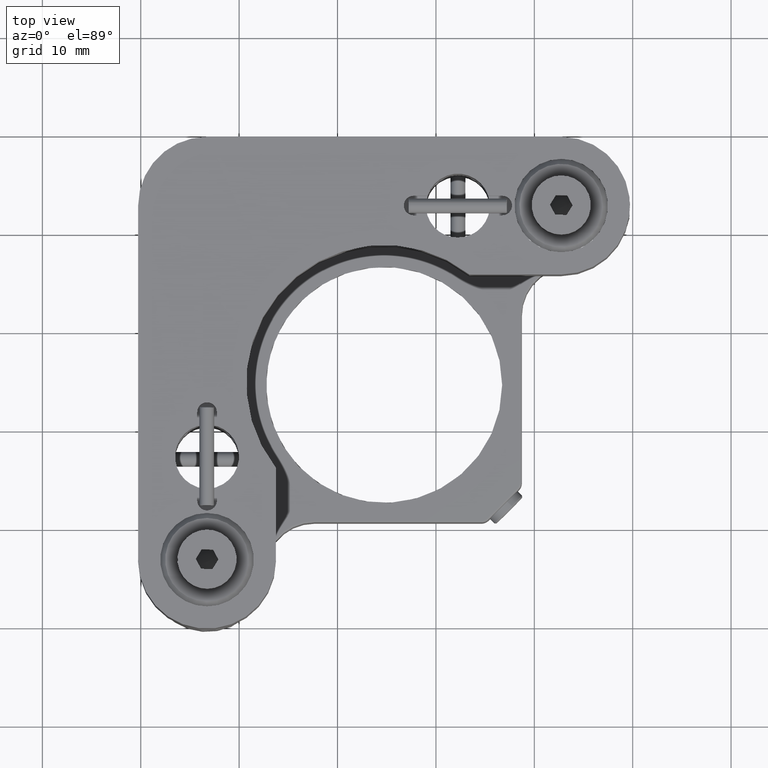
[diagram: clean part render]
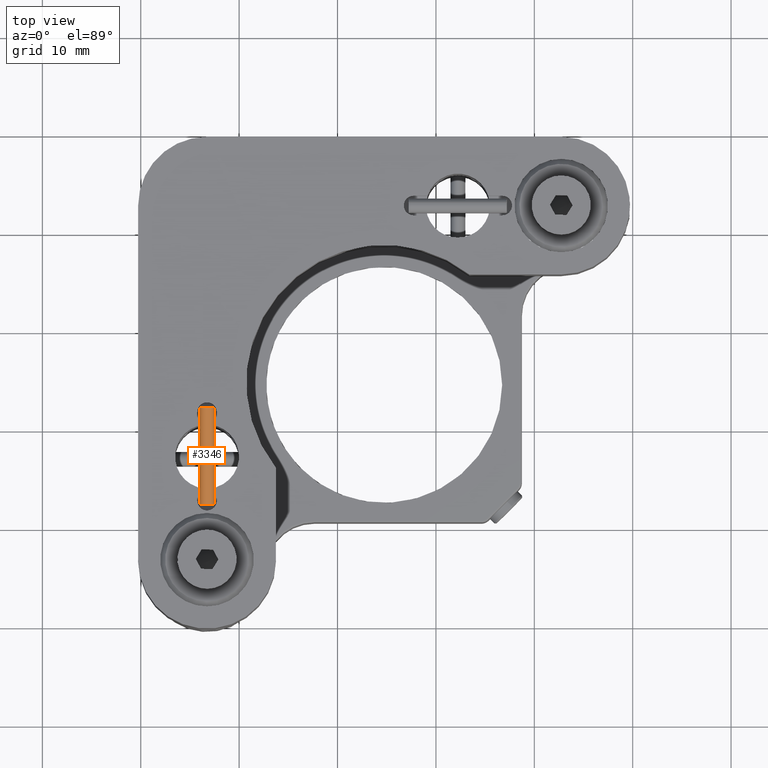
[diagram: same view with one face highlighted and labeled with its STEP entity id]
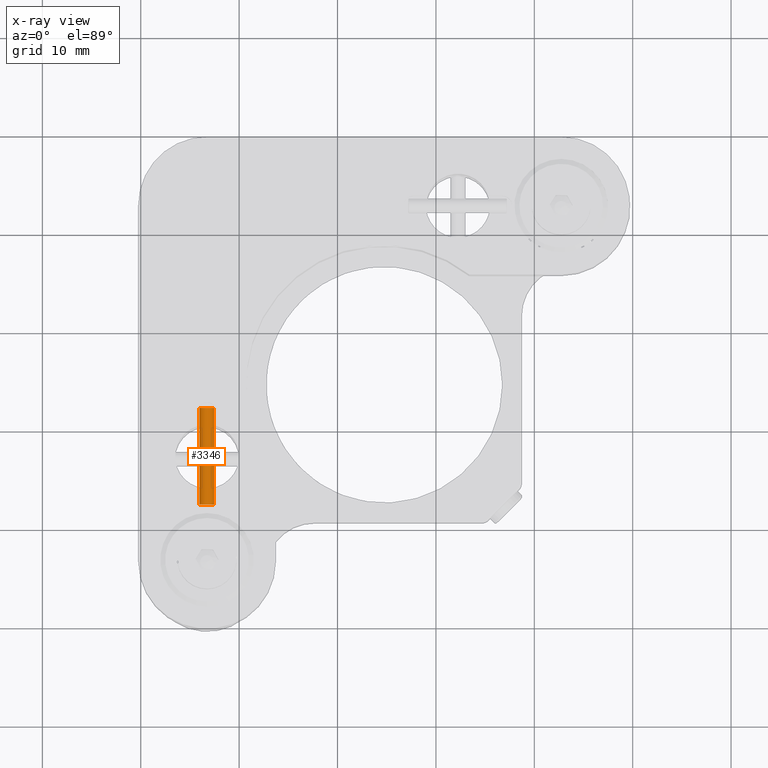
[diagram: x-ray of the same camera — body ghosted, the highlighted face saturated]
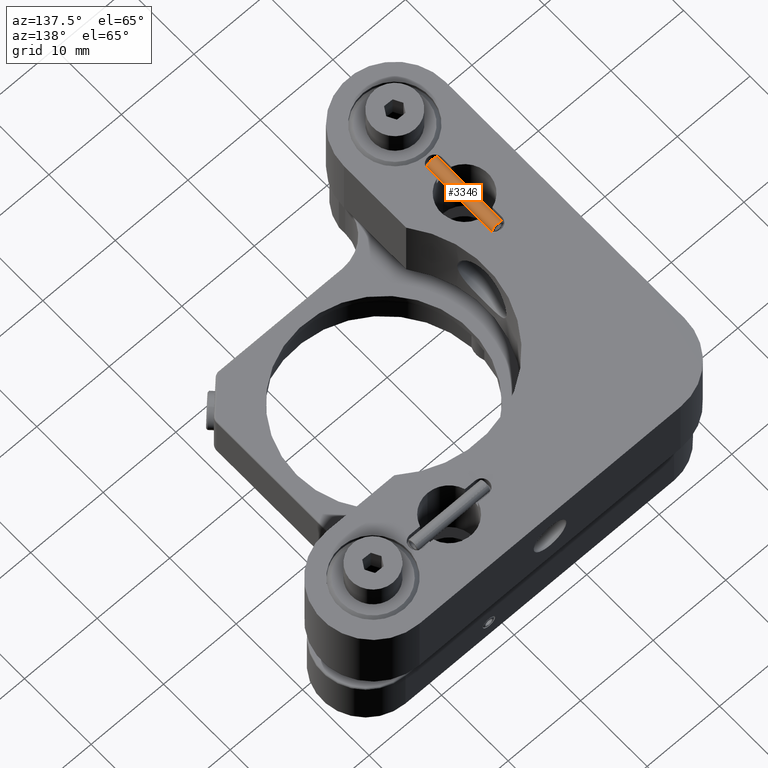
[diagram: same view with one face highlighted and labeled with its STEP entity id]
A machine part, top view. The second image highlights one B-rep face of the part: STEP entity #3346.
The next image is the same camera in x-ray: the body ghosted, the highlighted face saturated — about 0% of this face is hidden behind the body in this view.
A second angle (auxiliary view) of the same face is appended — the face is thin or edge-on in the first view.
In plain terms, the highlighted cylindrical surface (edge-blend (fillet) strip) has radius 0.75 mm, axis along (-0, 1, 0).
Its self-contained STEP definition (entity closure, byte-faithful):
#157 = DIRECTION ( 'NONE',  ( 1.715125691600425584E-16, -1.000000000000000000, -4.915457971277560508E-17 ) ) ;
#467 = VECTOR ( 'NONE', #1324, 1000.000000000000000 ) ;
#473 = LINE ( 'NONE', #3313, #3008 ) ;
#485 = CARTESIAN_POINT ( 'NONE',  ( 6.703539199922261105, 32.08474604782607997, 41.13193547686142182 ) ) ;
#560 = CARTESIAN_POINT ( 'NONE',  ( 6.105827189861305015, 22.18474604782607074, 40.67890087219097950 ) ) ;
#641 = CIRCLE ( 'NONE', #5311, 0.7500000000000011102 ) ;
#781 = EDGE_CURVE ( 'NONE', #915, #4746, #4244, .T. ) ;
#800 = FACE_OUTER_BOUND ( 'NONE', #2930, .T. ) ;
#915 = VERTEX_POINT ( 'NONE', #1489 ) ;
#1164 = DIRECTION ( 'NONE',  ( -1.715125691600425584E-16, 1.000000000000000000, 4.915457971277560508E-17 ) ) ;
#1299 = VERTEX_POINT ( 'NONE', #4188 ) ;
#1320 = ORIENTED_EDGE ( 'NONE', *, *, #3034, .F. ) ;
#1324 = DIRECTION ( 'NONE',  ( -1.715125691600425584E-16, 1.000000000000000000, 4.915457971277560508E-17 ) ) ;
#1391 = AXIS2_PLACEMENT_3D ( 'NONE', #485, #157, #1812 ) ;
#1489 = CARTESIAN_POINT ( 'NONE',  ( 6.137340962027714397, 32.08474604782607997, 40.64008229205408895 ) ) ;
#1592 = AXIS2_PLACEMENT_3D ( 'NONE', #4862, #1164, #2798 ) ;
#1812 = DIRECTION ( 'NONE',  ( 0.6302754433280511881, 0.000000000000000000, -0.7763716027377794981 ) ) ;
#2334 = EDGE_CURVE ( 'NONE', #1299, #4949, #641, .T. ) ;
#2798 = DIRECTION ( 'NONE',  ( -0.6302754433280511881, 0.000000000000000000, 0.7763716027377794981 ) ) ;
#2930 = EDGE_LOOP ( 'NONE', ( #3936, #2996, #1320, #4227 ) ) ;
#2996 = ORIENTED_EDGE ( 'NONE', *, *, #781, .T. ) ;
#3008 = VECTOR ( 'NONE', #3285, 1000.000000000000000 ) ;
#3011 = DIRECTION ( 'NONE',  ( -1.715125691600425584E-16, 1.000000000000000000, 4.915457971277560508E-17 ) ) ;
#3034 = EDGE_CURVE ( 'NONE', #1299, #4746, #4271, .T. ) ;
#3285 = DIRECTION ( 'NONE',  ( 1.715125691600425584E-16, -1.000000000000000000, -4.915457971277560508E-17 ) ) ;
#3313 = CARTESIAN_POINT ( 'NONE',  ( 6.137340962027709068, 22.18474604782606718, 40.64008229205408185 ) ) ;
#3346 = ADVANCED_FACE ( 'NONE', ( #800 ), #3693, .T. ) ;
#3693 = CYLINDRICAL_SURFACE ( 'NONE', #1592, 0.7500000000000038858 ) ;
#3773 = CARTESIAN_POINT ( 'NONE',  ( 6.703539199922258440, 22.28474604782607216, 41.13193547686142182 ) ) ;
#3936 = ORIENTED_EDGE ( 'NONE', *, *, #4517, .F. ) ;
#4188 = CARTESIAN_POINT ( 'NONE',  ( 6.105827189861306792, 22.28474604782607571, 40.67890087219097950 ) ) ;
#4206 = CARTESIAN_POINT ( 'NONE',  ( 6.105827189861311233, 32.08474604782607997, 40.67890087219097950 ) ) ;
#4227 = ORIENTED_EDGE ( 'NONE', *, *, #2334, .T. ) ;
#4235 = DIRECTION ( 'NONE',  ( 0.6302754433280477464, 0.000000000000000000, -0.7763716027377823847 ) ) ;
#4244 = CIRCLE ( 'NONE', #1391, 0.7500000000000038858 ) ;
#4271 = LINE ( 'NONE', #560, #467 ) ;
#4517 = EDGE_CURVE ( 'NONE', #915, #4949, #473, .T. ) ;
#4549 = CARTESIAN_POINT ( 'NONE',  ( 6.137340962027716174, 22.28474604782607216, 40.64008229205408895 ) ) ;
#4746 = VERTEX_POINT ( 'NONE', #4206 ) ;
#4862 = CARTESIAN_POINT ( 'NONE',  ( 6.703539199922257552, 22.18474604782606718, 41.13193547686142182 ) ) ;
#4949 = VERTEX_POINT ( 'NONE', #4549 ) ;
#5311 = AXIS2_PLACEMENT_3D ( 'NONE', #3773, #3011, #4235 ) ;